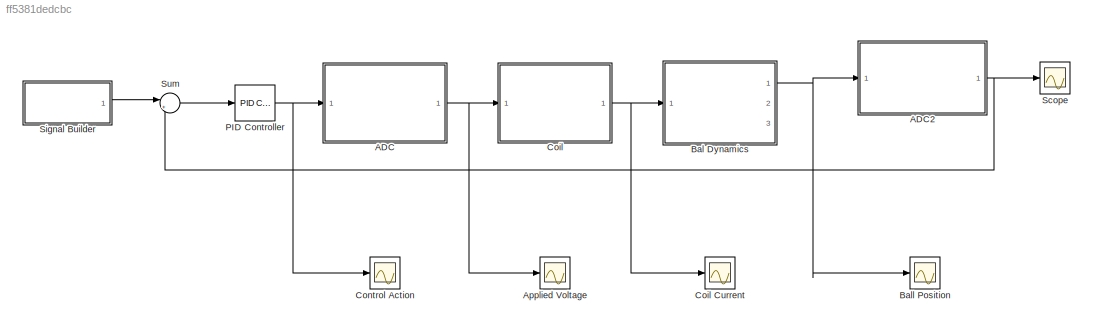
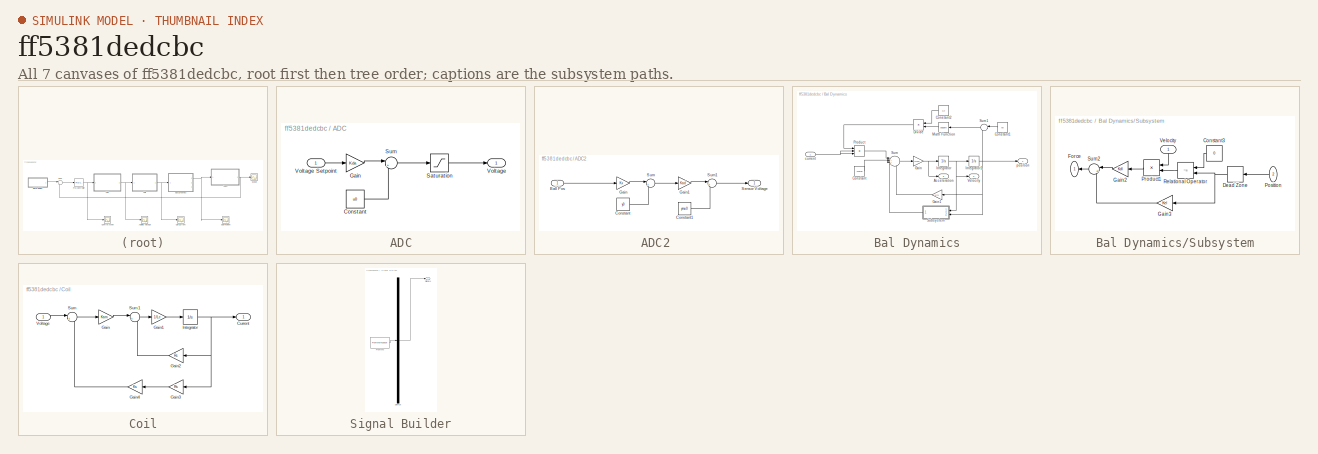
[diagram: thumbnail index - all 7 canvases of the model, root first then tree order]
MODEL slx_ff5381dedcbc
KIND model
CONFIG AbsTol = auto
CONFIG EnableMultiTasking = off
CONFIG FixedStep = auto
CONFIG MaxStep = auto
CONFIG MinStep = auto
CONFIG RelTol = 1e-3
CONFIG SampleTimeConstraint = Unconstrained
CONFIG Solver = VariableStepAuto
CONFIG SolverName = VariableStepAuto
CONFIG StartTime = 0.0
CONFIG StopTime = 10.0
BLOCK [SubSystem] ADC
  Ports = [1, 1]
  RequestExecContextInheritance = off
  Variant = off
BLOCK [Constant] ADC/Constant
  Value = u0
BLOCK [Gain] ADC/Gain
  Gain = Kda
  OutDataTypeStr = Inherit: Inherit via internal rule
  ParamDataTypeStr = Inherit: Inherit via internal rule
  SaturateOnIntegerOverflow = off
BLOCK [Saturate] ADC/Saturation
  InputPortMap = u0
  LowerLimit = 0
  Ports = [1, 1]
  UpperLimit = 5
BLOCK [Sum] ADC/Sum
  IconShape = round
  InputSameDT = off
  Inputs = |++
  OutDataTypeStr = Inherit: Inherit via internal rule
  Ports = [2, 1]
  SaturateOnIntegerOverflow = off
BLOCK [Outport] ADC/Voltage
  IconDisplay = Port number
BLOCK [Inport] ADC/Voltage Setpoint
  IconDisplay = Port number
BLOCK [SubSystem] ADC2 
  Ports = [1, 1]
  RequestExecContextInheritance = off
  Variant = off
BLOCK [Inport] ADC2 /Ball Pos 
  IconDisplay = Port number
BLOCK [Constant] ADC2 /Constant
  Value = y0
BLOCK [Constant] ADC2 /Constant1
  Value = ymu0
BLOCK [Gain] ADC2 /Gain
  Gain = Kx
  OutDataTypeStr = Inherit: Inherit via internal rule
  ParamDataTypeStr = Inherit: Inherit via internal rule
  SaturateOnIntegerOverflow = off
BLOCK [Gain] ADC2 /Gain1
  Gain = Kad
  OutDataTypeStr = Inherit: Inherit via internal rule
  ParamDataTypeStr = Inherit: Inherit via internal rule
  SaturateOnIntegerOverflow = off
BLOCK [Outport] ADC2 /Sensor Voltage 
  IconDisplay = Port number
BLOCK [Sum] ADC2 /Sum
  IconShape = round
  InputSameDT = off
  Inputs = |++
  OutDataTypeStr = Inherit: Inherit via internal rule
  Ports = [2, 1]
  SaturateOnIntegerOverflow = off
BLOCK [Sum] ADC2 /Sum1
  IconShape = round
  InputSameDT = off
  Inputs = |++
  OutDataTypeStr = Inherit: Inherit via internal rule
  Ports = [2, 1]
  SaturateOnIntegerOverflow = off
BLOCK [Scope] Applied Voltage
  NumInputPorts = 1
  Ports = [1]
  ScopeSpecificationString = Simulink.scopes.TimeScopeBlockCfg('CurrentConfiguration', extmgr.ConfigurationSet(extmgr.Configuration('Core','General UI',true),extmgr.Configuration('Core','Source UI',true),extmgr.Configuration('Sources','WiredSimulink',true,'DataLoggingVariableName','ScopeData2'),extmgr.Configuration('Visuals','Time Domain',true,'SerializedDisplays',{struct('MinYLimReal','-0.625','MaxYLimReal','5.625','YLabelRe...<+1400ch>
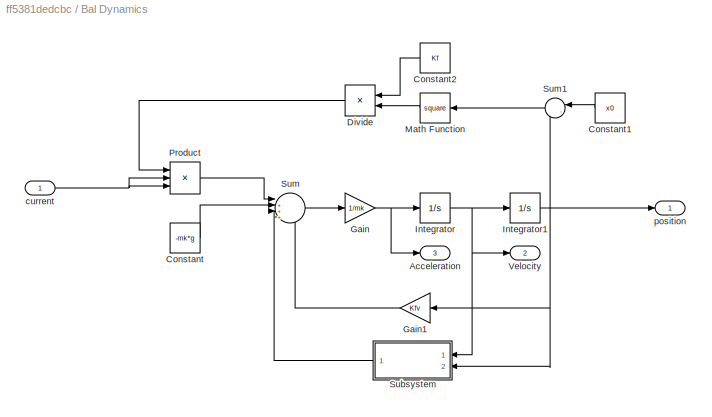
BLOCK [SubSystem] Bal Dynamics
  Ports = [1, 3]
  RequestExecContextInheritance = off
  Variant = off
BLOCK [Outport] Bal Dynamics/Acceleration
  IconDisplay = Port number
  Port = 3
BLOCK [Constant] Bal Dynamics/Constant
  Value = -mk*g
BLOCK [Constant] Bal Dynamics/Constant1
  Value = x0
BLOCK [Constant] Bal Dynamics/Constant2
  Value = Kf
BLOCK [Product] Bal Dynamics/Divide
  InputSameDT = off
  Inputs = */
  OutDataTypeStr = Inherit: Inherit via internal rule
  Ports = [2, 1]
  RndMeth = Floor
  SaturateOnIntegerOverflow = off
BLOCK [Gain] Bal Dynamics/Gain
  Gain = 1/mk
  OutDataTypeStr = Inherit: Inherit via internal rule
  ParamDataTypeStr = Inherit: Inherit via internal rule
  SaturateOnIntegerOverflow = off
BLOCK [Gain] Bal Dynamics/Gain1
  Gain = Kfv
  OutDataTypeStr = Inherit: Inherit via internal rule
  ParamDataTypeStr = Inherit: Inherit via internal rule
  SaturateOnIntegerOverflow = off
BLOCK [Integrator] Bal Dynamics/Integrator
  Ports = [1, 1]
BLOCK [Integrator] Bal Dynamics/Integrator1
  LimitOutput = on
  LowerSaturationLimit = 0
  Ports = [1, 1]
  UpperSaturationLimit = L
BLOCK [Math] Bal Dynamics/Math Function
  Operator = square
  Ports = [1, 1]
BLOCK [Product] Bal Dynamics/Product
  InputSameDT = off
  Inputs = 3
  OutDataTypeStr = Inherit: Inherit via internal rule
  Ports = [3, 1]
  RndMeth = Floor
  SaturateOnIntegerOverflow = off
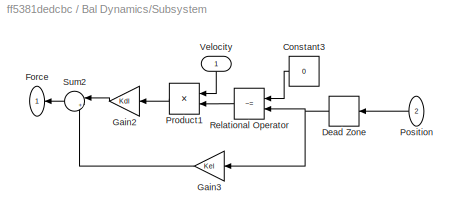
BLOCK [SubSystem] Bal Dynamics/Subsystem
  Ports = [2, 1]
  RequestExecContextInheritance = off
  Variant = off
BLOCK [Constant] Bal Dynamics/Subsystem/Constant3
  Value = 0
BLOCK [DeadZone] Bal Dynamics/Subsystem/Dead Zone
  LowerValue = 0
  UpperValue = L
BLOCK [Outport] Bal Dynamics/Subsystem/Force
  IconDisplay = Port number
BLOCK [Gain] Bal Dynamics/Subsystem/Gain2
  Gain = Kdl
  OutDataTypeStr = Inherit: Inherit via internal rule
  ParamDataTypeStr = Inherit: Inherit via internal rule
  SaturateOnIntegerOverflow = off
BLOCK [Gain] Bal Dynamics/Subsystem/Gain3
  Gain = Kel
  OutDataTypeStr = Inherit: Inherit via internal rule
  ParamDataTypeStr = Inherit: Inherit via internal rule
  SaturateOnIntegerOverflow = off
BLOCK [Inport] Bal Dynamics/Subsystem/Position
  IconDisplay = Port number
  Port = 2
BLOCK [Product] Bal Dynamics/Subsystem/Product1
  InputSameDT = off
  OutDataTypeStr = Inherit: Inherit via internal rule
  Ports = [2, 1]
  RndMeth = Floor
  SaturateOnIntegerOverflow = off
BLOCK [RelationalOperator] Bal Dynamics/Subsystem/Relational Operator
  InputSameDT = off
  Operator = ~=
  OutDataTypeStr = boolean
  Ports = [2, 1]
  RndMeth = Simplest
BLOCK [Sum] Bal Dynamics/Subsystem/Sum2
  IconShape = round
  InputSameDT = off
  Inputs = |++
  OutDataTypeStr = Inherit: Inherit via internal rule
  Ports = [2, 1]
  SaturateOnIntegerOverflow = off
BLOCK [Inport] Bal Dynamics/Subsystem/Velocity
  IconDisplay = Port number
BLOCK [Sum] Bal Dynamics/Sum
  IconShape = round
  InputSameDT = off
  Inputs = |+++-
  OutDataTypeStr = Inherit: Inherit via internal rule
  Ports = [4, 1]
  SaturateOnIntegerOverflow = off
BLOCK [Sum] Bal Dynamics/Sum1
  IconShape = round
  InputSameDT = off
  Inputs = |-+
  OutDataTypeStr = Inherit: Inherit via internal rule
  Ports = [2, 1]
  SaturateOnIntegerOverflow = off
BLOCK [Outport] Bal Dynamics/Velocity
  IconDisplay = Port number
  Port = 2
BLOCK [Inport] Bal Dynamics/current
  IconDisplay = Port number
BLOCK [Outport] Bal Dynamics/position 
  IconDisplay = Port number
BLOCK [Scope] Ball Position
  NumInputPorts = 1
  Ports = [1]
  ScopeSpecificationString = Simulink.scopes.TimeScopeBlockCfg('CurrentConfiguration', extmgr.ConfigurationSet(extmgr.Configuration('Core','General UI',true),extmgr.Configuration('Core','Source UI',true),extmgr.Configuration('Sources','WiredSimulink',true,'DataLoggingVariableName','ScopeData4'),extmgr.Configuration('Visuals','Time Domain',true,'SerializedDisplays',{struct('MinYLimReal','-1.00000','MaxYLimReal','1.00000','YLab...<+1428ch>
BLOCK [SubSystem] Coil
  Ports = [1, 1]
  RequestExecContextInheritance = off
  Variant = off
BLOCK [Scope] Coil Current
  NumInputPorts = 1
  Ports = [1]
  ScopeSpecificationString = Simulink.scopes.TimeScopeBlockCfg('CurrentConfiguration', extmgr.ConfigurationSet(extmgr.Configuration('Core','General UI',true),extmgr.Configuration('Core','Source UI',true),extmgr.Configuration('Sources','WiredSimulink',true,'DataLoggingVariableName','ScopeData3'),extmgr.Configuration('Visuals','Time Domain',true,'SerializedDisplays',{struct('MinYLimReal','-0.18558','MaxYLimReal','1.67025','YLab...<+1417ch>
BLOCK [Outport] Coil/Current
  IconDisplay = Port number
BLOCK [Gain] Coil/Gain
  Gain = Kam
  OutDataTypeStr = Inherit: Inherit via internal rule
  ParamDataTypeStr = Inherit: Inherit via internal rule
  SaturateOnIntegerOverflow = off
BLOCK [Gain] Coil/Gain1
  Gain = 1/Lc
  OutDataTypeStr = Inherit: Inherit via internal rule
  ParamDataTypeStr = Inherit: Inherit via internal rule
  SaturateOnIntegerOverflow = off
BLOCK [Gain] Coil/Gain2
  Gain = Rc
  OutDataTypeStr = Inherit: Inherit via internal rule
  ParamDataTypeStr = Inherit: Inherit via internal rule
  SaturateOnIntegerOverflow = off
BLOCK [Gain] Coil/Gain3
  Gain = Rs
  OutDataTypeStr = Inherit: Inherit via internal rule
  ParamDataTypeStr = Inherit: Inherit via internal rule
  SaturateOnIntegerOverflow = off
BLOCK [Gain] Coil/Gain4
  Gain = Ks
  OutDataTypeStr = Inherit: Inherit via internal rule
  ParamDataTypeStr = Inherit: Inherit via internal rule
  SaturateOnIntegerOverflow = off
BLOCK [Integrator] Coil/Integrator
  Ports = [1, 1]
BLOCK [Sum] Coil/Sum
  IconShape = round
  InputSameDT = off
  Inputs = |+-
  OutDataTypeStr = Inherit: Inherit via internal rule
  Ports = [2, 1]
  SaturateOnIntegerOverflow = off
BLOCK [Sum] Coil/Sum1
  IconShape = round
  InputSameDT = off
  Inputs = |+-
  OutDataTypeStr = Inherit: Inherit via internal rule
  Ports = [2, 1]
  SaturateOnIntegerOverflow = off
BLOCK [Inport] Coil/Voltage 
  IconDisplay = Port number
BLOCK [Scope] Control Action
  NumInputPorts = 1
  Ports = [1]
  ScopeSpecificationString = Simulink.scopes.TimeScopeBlockCfg('CurrentConfiguration', extmgr.ConfigurationSet(extmgr.Configuration('Core','General UI',true),extmgr.Configuration('Core','Source UI',true),extmgr.Configuration('Sources','WiredSimulink',true,'DataLoggingVariableName','ScopeData1'),extmgr.Configuration('Visuals','Time Domain',true,'SerializedDisplays',{struct('MinYLimReal','-0.125','MaxYLimReal','1.125','YLabelRe...<+1412ch>
BLOCK [Reference] PID Controller  REF=simulink/Continuous/PID Controller
  Ports = [1, 1]
  SourceBlock = simulink/Continuous/PID Controller
  SourceType = PID 1dof
BLOCK [Scope] Scope
  NumInputPorts = 1
  Ports = [1]
  ScopeSpecificationString = Simulink.scopes.TimeScopeBlockCfg('CurrentConfiguration', extmgr.ConfigurationSet(extmgr.Configuration('Core','General UI',true),extmgr.Configuration('Core','Source UI',true),extmgr.Configuration('Sources','WiredSimulink',true),extmgr.Configuration('Visuals','Time Domain',true,'SerializedDisplays',{struct('MinYLimReal','0.0008','MaxYLimReal','0.0208','YLabelReal','','MinYLimMag','0.0008','MaxYLimM...<+1315ch>
BLOCK [SubSystem] Signal Builder
  ClipboardFcn = sigbuilder_block('clipboard');
  CloseFcn = sigbuilder_block('close');
  ContinueFcn = sigbuilder_block('continue');
  CopyFcn = sigbuilder_block('copy');
  DeleteFcn = sigbuilder_block('delete');
  LoadFcn = sigbuilder_block('load');
  MaskHideContents = on
  ModelCloseFcn = sigbuilder_block('modelClose');
  NameChangeFcn = sigbuilder_block('namechange');
  OpenFcn = sigbuilder_block('open',[437.6 199.2 550.4 400 ]);
  PauseFcn = sigbuilder_block('pause');
  Ports = [0, 1]
  PreSaveFcn = sigbuilder_block('preSave');
  RequestExecContextInheritance = off
  StartFcn = sigbuilder_block('start');
  StopFcn = sigbuilder_block('stop');
  Tag = STV Subsys
  Variant = off
BLOCK [Demux] Signal Builder/Demux
  Outputs = 1
  Ports = [1, 1]
  Tag = STV Demux
BLOCK [FromWorkspace] Signal Builder/FromWs
  SampleTime = 0
  Tag = STV FromWs
  VariableName = tuvar
  ZeroCross = on
BLOCK [Outport] Signal Builder/Signal 1
  IconDisplay = Port number
  Tag = STV Outport
BLOCK [Sum] Sum
  IconShape = round
  InputSameDT = off
  Inputs = |+-
  OutDataTypeStr = Inherit: Inherit via internal rule
  Ports = [2, 1]
  SaturateOnIntegerOverflow = off
LINE ADC/Constant:1 -> ADC/Sum:2
LINE ADC/Gain:1 -> ADC/Sum:1
LINE ADC/Saturation:1 -> ADC/Voltage:1
LINE ADC/Sum:1 -> ADC/Saturation:1
LINE ADC/Voltage Setpoint:1 -> ADC/Gain:1
LINE ADC2 /Ball Pos :1 -> ADC2 /Gain:1
LINE ADC2 /Constant1:1 -> ADC2 /Sum1:2
LINE ADC2 /Constant:1 -> ADC2 /Sum:2
LINE ADC2 /Gain1:1 -> ADC2 /Sum1:1
LINE ADC2 /Gain:1 -> ADC2 /Sum:1
LINE ADC2 /Sum1:1 -> ADC2 /Sensor Voltage :1
LINE ADC2 /Sum:1 -> ADC2 /Gain1:1
NET ADC2 :1 -> Scope:1, Sum:2
NET ADC:1 -> Applied Voltage:1, Coil:1
LINE Bal Dynamics/Constant1:1 -> Bal Dynamics/Sum1:1
LINE Bal Dynamics/Constant2:1 -> Bal Dynamics/Divide:1
LINE Bal Dynamics/Constant:1 -> Bal Dynamics/Sum:2
LINE Bal Dynamics/Divide:1 -> Bal Dynamics/Product:1
LINE Bal Dynamics/Gain1:1 -> Bal Dynamics/Sum:4
NET Bal Dynamics/Gain:1 -> Bal Dynamics/Acceleration:1, Bal Dynamics/Integrator:1
NET Bal Dynamics/Integrator1:1 -> Bal Dynamics/Gain1:1, Bal Dynamics/Subsystem:2, Bal Dynamics/Sum1:2, Bal Dynamics/position :1
NET Bal Dynamics/Integrator:1 -> Bal Dynamics/Integrator1:1, Bal Dynamics/Subsystem:1, Bal Dynamics/Velocity:1
LINE Bal Dynamics/Math Function:1 -> Bal Dynamics/Divide:2
LINE Bal Dynamics/Product:1 -> Bal Dynamics/Sum:1
LINE Bal Dynamics/Subsystem/Constant3:1 -> Bal Dynamics/Subsystem/Relational Operator:1
NET Bal Dynamics/Subsystem/Dead Zone:1 -> Bal Dynamics/Subsystem/Gain3:1, Bal Dynamics/Subsystem/Relational Operator:2
LINE Bal Dynamics/Subsystem/Gain2:1 -> Bal Dynamics/Subsystem/Sum2:1
LINE Bal Dynamics/Subsystem/Gain3:1 -> Bal Dynamics/Subsystem/Sum2:2
LINE Bal Dynamics/Subsystem/Position:1 -> Bal Dynamics/Subsystem/Dead Zone:1
LINE Bal Dynamics/Subsystem/Product1:1 -> Bal Dynamics/Subsystem/Gain2:1
LINE Bal Dynamics/Subsystem/Relational Operator:1 -> Bal Dynamics/Subsystem/Product1:2
LINE Bal Dynamics/Subsystem/Sum2:1 -> Bal Dynamics/Subsystem/Force:1
LINE Bal Dynamics/Subsystem/Velocity:1 -> Bal Dynamics/Subsystem/Product1:1
LINE Bal Dynamics/Subsystem:1 -> Bal Dynamics/Sum:3
LINE Bal Dynamics/Sum1:1 -> Bal Dynamics/Math Function:1
LINE Bal Dynamics/Sum:1 -> Bal Dynamics/Gain:1
NET Bal Dynamics/current:1 -> Bal Dynamics/Product:2, Bal Dynamics/Product:3
NET Bal Dynamics:1 -> ADC2 :1, Ball Position:1
LINE Coil/Gain1:1 -> Coil/Integrator:1
LINE Coil/Gain2:1 -> Coil/Sum1:2
LINE Coil/Gain3:1 -> Coil/Gain4:1
LINE Coil/Gain4:1 -> Coil/Sum:2
LINE Coil/Gain:1 -> Coil/Sum1:1
NET Coil/Integrator:1 -> Coil/Current:1, Coil/Gain2:1, Coil/Gain3:1
LINE Coil/Sum1:1 -> Coil/Gain1:1
LINE Coil/Sum:1 -> Coil/Gain:1
LINE Coil/Voltage :1 -> Coil/Sum:1
NET Coil:1 -> Bal Dynamics:1, Coil Current:1
NET PID Controller:1 -> ADC:1, Control Action:1
LINE Signal Builder:1 -> Sum:1
LINE Sum:1 -> PID Controller:1
note: NET lines group one-source signal fan-out (src -> all destinations, sorted); 1:1 wires keep LINE
